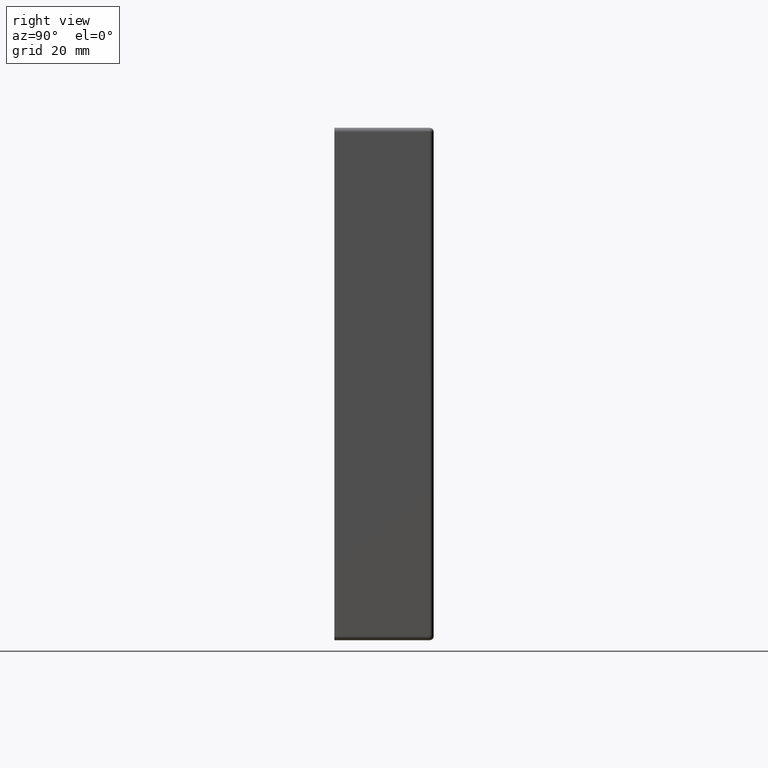
[diagram: clean part render]
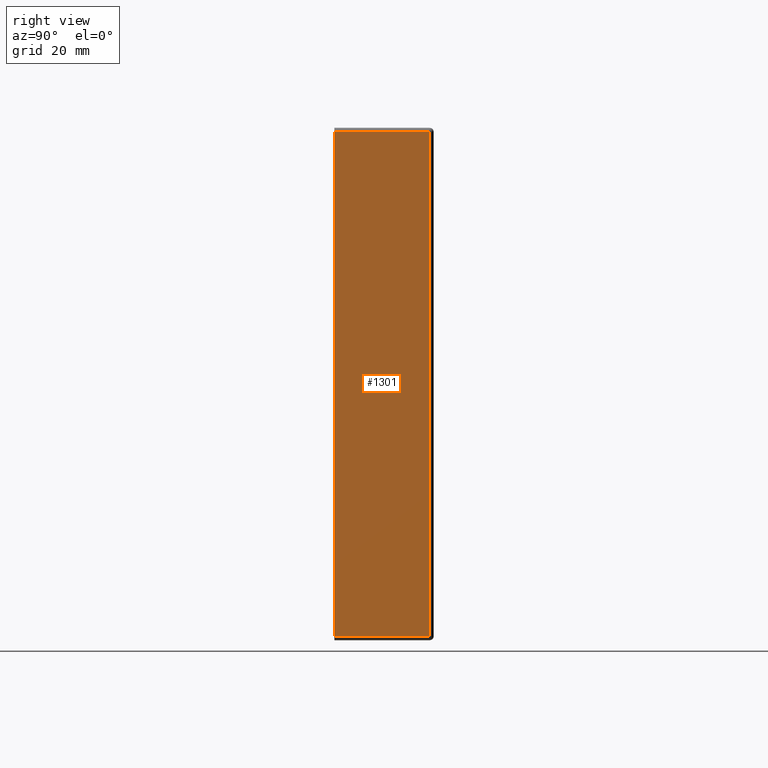
[diagram: same view with one face highlighted and labeled with its STEP entity id]
A machine part, right view. The second image highlights one B-rep face of the part: STEP entity #1301.
In plain terms, the highlighted planar face has unit normal (-1, 0, 0).
Its self-contained STEP definition (entity closure, byte-faithful):
#883 = LINE ( 'NONE', #13145, #12744 ) ;
#930 = PLANE ( 'NONE',  #8508 ) ;
#1036 = EDGE_CURVE ( 'NONE', #12242, #4843, #883, .T. ) ;
#1083 = CARTESIAN_POINT ( 'NONE',  ( 64.50000000000000000, 25.00000000000000000, -64.49999999999997158 ) ) ;
#1087 = CARTESIAN_POINT ( 'NONE',  ( 64.50000000000000000, 25.00000000000000000, -63.49999999999997158 ) ) ;
#1301 = ADVANCED_FACE ( 'NONE', ( #2348 ), #930, .F. ) ;
#2104 = DIRECTION ( 'NONE',  ( -1.000000000000000000, 0.000000000000000000, 0.000000000000000000 ) ) ;
#2164 = CARTESIAN_POINT ( 'NONE',  ( 64.50000000000000000, 24.00000000000000000, 63.50000000000000000 ) ) ;
#2348 = FACE_OUTER_BOUND ( 'NONE', #6210, .T. ) ;
#2748 = VERTEX_POINT ( 'NONE', #2164 ) ;
#3374 = DIRECTION ( 'NONE',  ( -0.000000000000000000, 1.000000000000000000, -0.000000000000000000 ) ) ;
#3393 = VECTOR ( 'NONE', #10847, 1000.000000000000000 ) ;
#3529 = ORIENTED_EDGE ( 'NONE', *, *, #1036, .T. ) ;
#3939 = CARTESIAN_POINT ( 'NONE',  ( 64.50000000000000000, 24.00000000000000000, 64.50000000000000000 ) ) ;
#4843 = VERTEX_POINT ( 'NONE', #14530 ) ;
#5575 = CARTESIAN_POINT ( 'NONE',  ( 64.50000000000000000, 0.000000000000000000, 63.50000000000000000 ) ) ;
#6002 = ORIENTED_EDGE ( 'NONE', *, *, #8713, .T. ) ;
#6210 = EDGE_LOOP ( 'NONE', ( #3529, #6002, #8021, #13485 ) ) ;
#6377 = EDGE_CURVE ( 'NONE', #2748, #12242, #12557, .T. ) ;
#6832 = CARTESIAN_POINT ( 'NONE',  ( 64.50000000000000000, 24.00000000000000000, -63.49999999999997158 ) ) ;
#7329 = VECTOR ( 'NONE', #3374, 1000.000000000000000 ) ;
#7697 = LINE ( 'NONE', #3939, #3393 ) ;
#8021 = ORIENTED_EDGE ( 'NONE', *, *, #9912, .T. ) ;
#8508 = AXIS2_PLACEMENT_3D ( 'NONE', #1083, #2104, #10134 ) ;
#8713 = EDGE_CURVE ( 'NONE', #4843, #9743, #11984, .T. ) ;
#9599 = CARTESIAN_POINT ( 'NONE',  ( 64.50000000000000000, 25.00000000000000000, 63.50000000000000000 ) ) ;
#9743 = VERTEX_POINT ( 'NONE', #6832 ) ;
#9846 = DIRECTION ( 'NONE',  ( -0.000000000000000000, -0.000000000000000000, -1.000000000000000000 ) ) ;
#9912 = EDGE_CURVE ( 'NONE', #9743, #2748, #7697, .T. ) ;
#10134 = DIRECTION ( 'NONE',  ( 0.000000000000000000, 0.000000000000000000, 1.000000000000000000 ) ) ;
#10847 = DIRECTION ( 'NONE',  ( -0.000000000000000000, -0.000000000000000000, 1.000000000000000000 ) ) ;
#11300 = VECTOR ( 'NONE', #11729, 1000.000000000000000 ) ;
#11729 = DIRECTION ( 'NONE',  ( 0.000000000000000000, -1.000000000000000000, 0.000000000000000000 ) ) ;
#11984 = LINE ( 'NONE', #1087, #7329 ) ;
#12242 = VERTEX_POINT ( 'NONE', #5575 ) ;
#12557 = LINE ( 'NONE', #9599, #11300 ) ;
#12744 = VECTOR ( 'NONE', #9846, 1000.000000000000000 ) ;
#13145 = CARTESIAN_POINT ( 'NONE',  ( 64.50000000000000000, 0.000000000000000000, -64.49999999999997158 ) ) ;
#13485 = ORIENTED_EDGE ( 'NONE', *, *, #6377, .T. ) ;
#14530 = CARTESIAN_POINT ( 'NONE',  ( 64.50000000000000000, 0.000000000000000000, -63.49999999999997158 ) ) ;